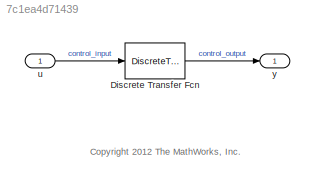
MODEL slx_7c1ea4d71439
KIND model
BLOCK [DiscreteTransferFcn] Discrete Transfer Fcn
  Denominator = [1 -0.5075 -0.4925]
  InputPortMap = u0
  Numerator = [758.6 -1502 743.4]
  Ports = [1, 1]
  SampleTime = 0.001
BLOCK [Inport] u
  IconDisplay = Port number
  OutDataTypeStr = double
  PortDimensions = 1
BLOCK [Outport] y
  IconDisplay = Port number
  OutDataTypeStr = double
  PortDimensions = 1
  SignalType = real
  VarSizeSig = No
ANNOTATION (root): <copyright redacted>
LINE Discrete Transfer Fcn:1 -> y:1
LINE u:1 -> Discrete Transfer Fcn:1
